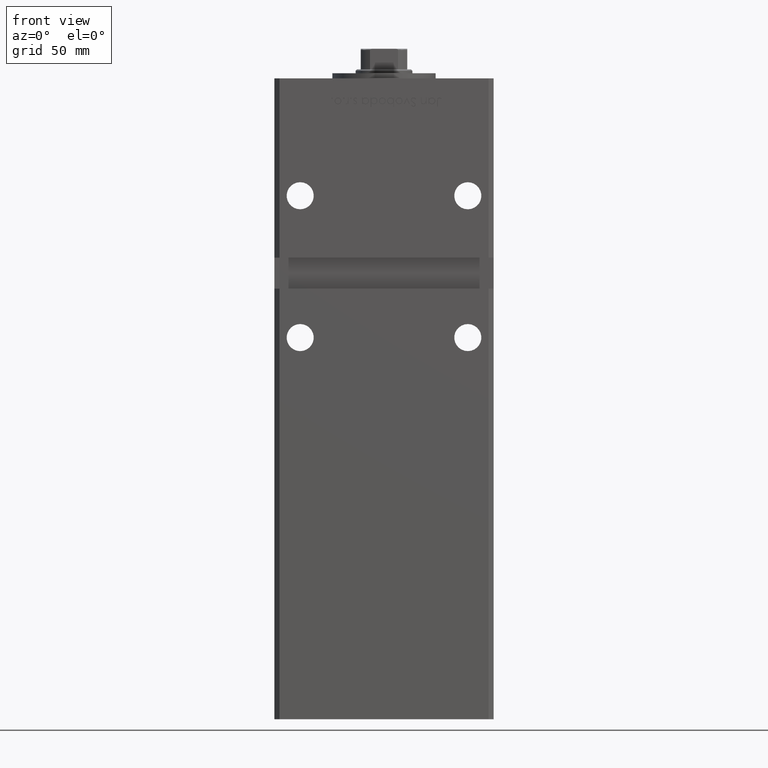
[diagram: clean part render]
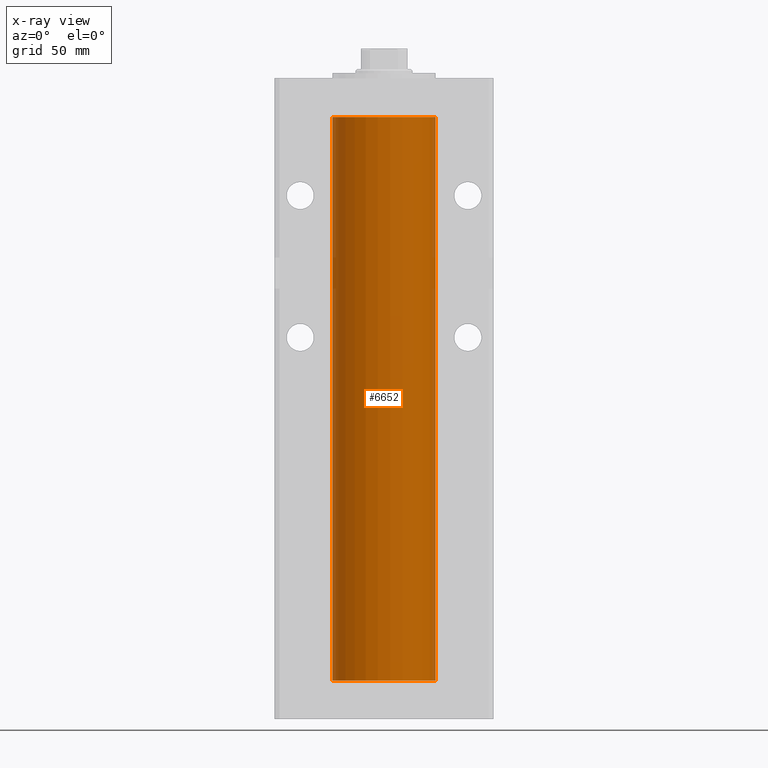
[diagram: x-ray — body ghosted, one internal face saturated and labeled with its STEP entity id]
A machine part, front view, then the same camera in x-ray: the body is ghosted and one INTERNAL B-rep face — a face not visible from any outside direction — is saturated and labeled: STEP entity #6652.
In plain terms, the highlighted cylindrical surface (partial cylindrical patch) has radius 20 mm, axis along (-0, -0, -1).
Its self-contained STEP definition (entity closure, byte-faithful):
#1930 = LINE ( 'NONE', #42542, #34997 ) ;
#6652 = ADVANCED_FACE ( 'NONE', ( #27271 ), #40418, .F. ) ;
#8320 = DIRECTION ( 'NONE',  ( -0.000000000000000000, -0.000000000000000000, -1.000000000000000000 ) ) ;
#12469 = CARTESIAN_POINT ( 'NONE',  ( -20.00000000000000000, 0.000000000000000000, 0.000000000000000000 ) ) ;
#14090 = AXIS2_PLACEMENT_3D ( 'NONE', #35820, #18382, #31003 ) ;
#16125 = LINE ( 'NONE', #33578, #37257 ) ;
#18071 = CARTESIAN_POINT ( 'NONE',  ( 20.00000000000000000, 2.449293598294706513E-15, 0.000000000000000000 ) ) ;
#18079 = DIRECTION ( 'NONE',  ( -0.000000000000000000, -0.000000000000000000, -1.000000000000000000 ) ) ;
#18382 = DIRECTION ( 'NONE',  ( -0.000000000000000000, 0.000000000000000000, 1.000000000000000000 ) ) ;
#18385 = CIRCLE ( 'NONE', #14090, 20.00000000000000000 ) ;
#19980 = DIRECTION ( 'NONE',  ( -0.000000000000000000, -0.000000000000000000, -1.000000000000000000 ) ) ;
#21440 = CARTESIAN_POINT ( 'NONE',  ( 0.000000000000000000, 0.000000000000000000, 218.5000000000000000 ) ) ;
#25613 = CARTESIAN_POINT ( 'NONE',  ( 20.00000000000000000, 2.449293598294706513E-15, 218.5000000000000000 ) ) ;
#26946 = ORIENTED_EDGE ( 'NONE', *, *, #38884, .T. ) ;
#27271 = FACE_OUTER_BOUND ( 'NONE', #35042, .T. ) ;
#28748 = EDGE_CURVE ( 'NONE', #40232, #36520, #16125, .T. ) ;
#29300 = EDGE_CURVE ( 'NONE', #34978, #36520, #18385, .T. ) ;
#30066 = CARTESIAN_POINT ( 'NONE',  ( -20.00000000000000000, 0.000000000000000000, 218.5000000000000000 ) ) ;
#31003 = DIRECTION ( 'NONE',  ( 1.000000000000000000, 0.000000000000000000, 0.000000000000000000 ) ) ;
#31556 = DIRECTION ( 'NONE',  ( -1.000000000000000000, 0.000000000000000000, 0.000000000000000000 ) ) ;
#33529 = DIRECTION ( 'NONE',  ( -0.000000000000000000, 0.000000000000000000, 1.000000000000000000 ) ) ;
#33578 = CARTESIAN_POINT ( 'NONE',  ( 20.00000000000000000, 2.449293598294706513E-15, 218.5000000000000000 ) ) ;
#34035 = AXIS2_PLACEMENT_3D ( 'NONE', #21440, #33529, #37829 ) ;
#34978 = VERTEX_POINT ( 'NONE', #12469 ) ;
#34997 = VECTOR ( 'NONE', #18079, 1000.000000000000000 ) ;
#35042 = EDGE_LOOP ( 'NONE', ( #26946, #49021, #38181, #35151 ) ) ;
#35151 = ORIENTED_EDGE ( 'NONE', *, *, #44758, .F. ) ;
#35820 = CARTESIAN_POINT ( 'NONE',  ( 0.000000000000000000, 0.000000000000000000, 0.000000000000000000 ) ) ;
#36520 = VERTEX_POINT ( 'NONE', #18071 ) ;
#36578 = CIRCLE ( 'NONE', #34035, 20.00000000000000000 ) ;
#37257 = VECTOR ( 'NONE', #8320, 1000.000000000000000 ) ;
#37829 = DIRECTION ( 'NONE',  ( 1.000000000000000000, 0.000000000000000000, 0.000000000000000000 ) ) ;
#38181 = ORIENTED_EDGE ( 'NONE', *, *, #29300, .F. ) ;
#38884 = EDGE_CURVE ( 'NONE', #52438, #40232, #36578, .T. ) ;
#39540 = AXIS2_PLACEMENT_3D ( 'NONE', #47684, #19980, #31556 ) ;
#40232 = VERTEX_POINT ( 'NONE', #25613 ) ;
#40418 = CYLINDRICAL_SURFACE ( 'NONE', #39540, 20.00000000000000000 ) ;
#42542 = CARTESIAN_POINT ( 'NONE',  ( -20.00000000000000000, 0.000000000000000000, 218.5000000000000000 ) ) ;
#44758 = EDGE_CURVE ( 'NONE', #52438, #34978, #1930, .T. ) ;
#47684 = CARTESIAN_POINT ( 'NONE',  ( 0.000000000000000000, 0.000000000000000000, 218.5000000000000000 ) ) ;
#49021 = ORIENTED_EDGE ( 'NONE', *, *, #28748, .T. ) ;
#52438 = VERTEX_POINT ( 'NONE', #30066 ) ;